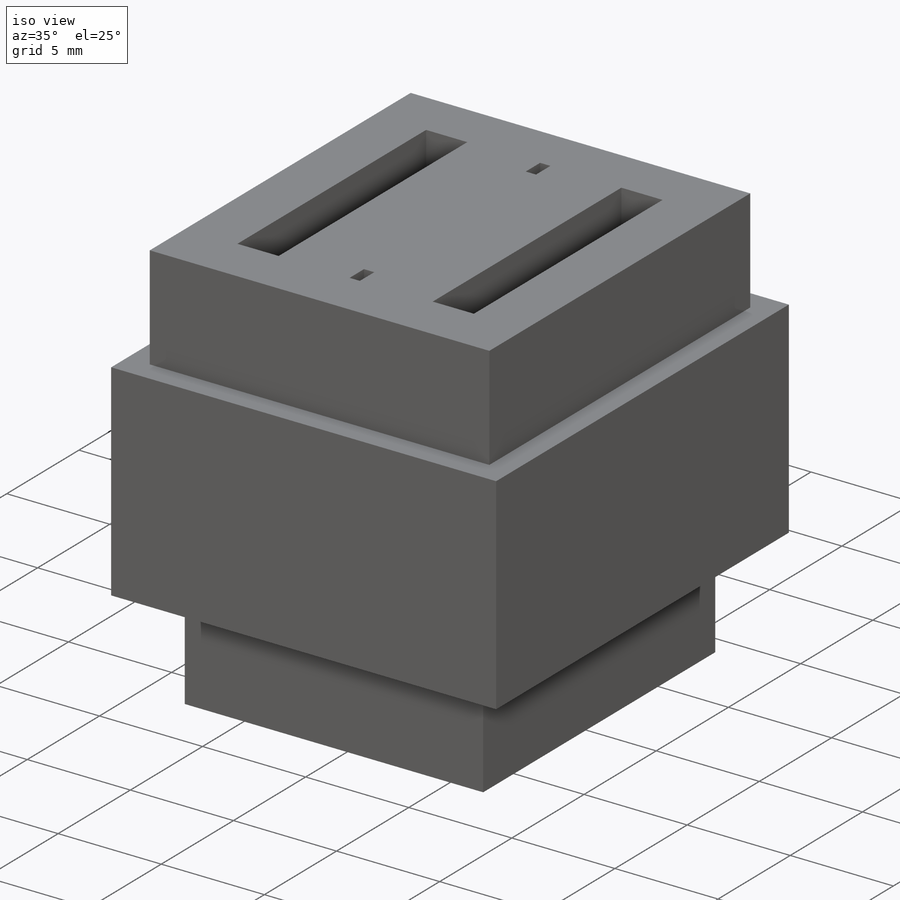
[diagram: iso view]
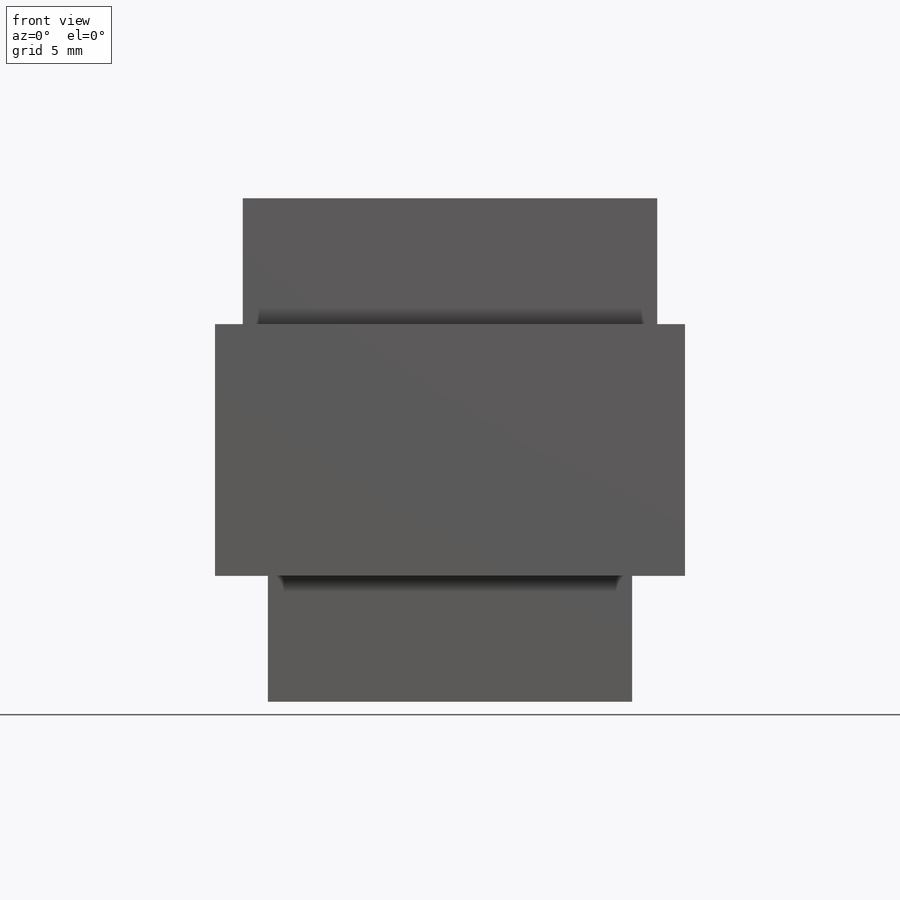
[diagram: front view]
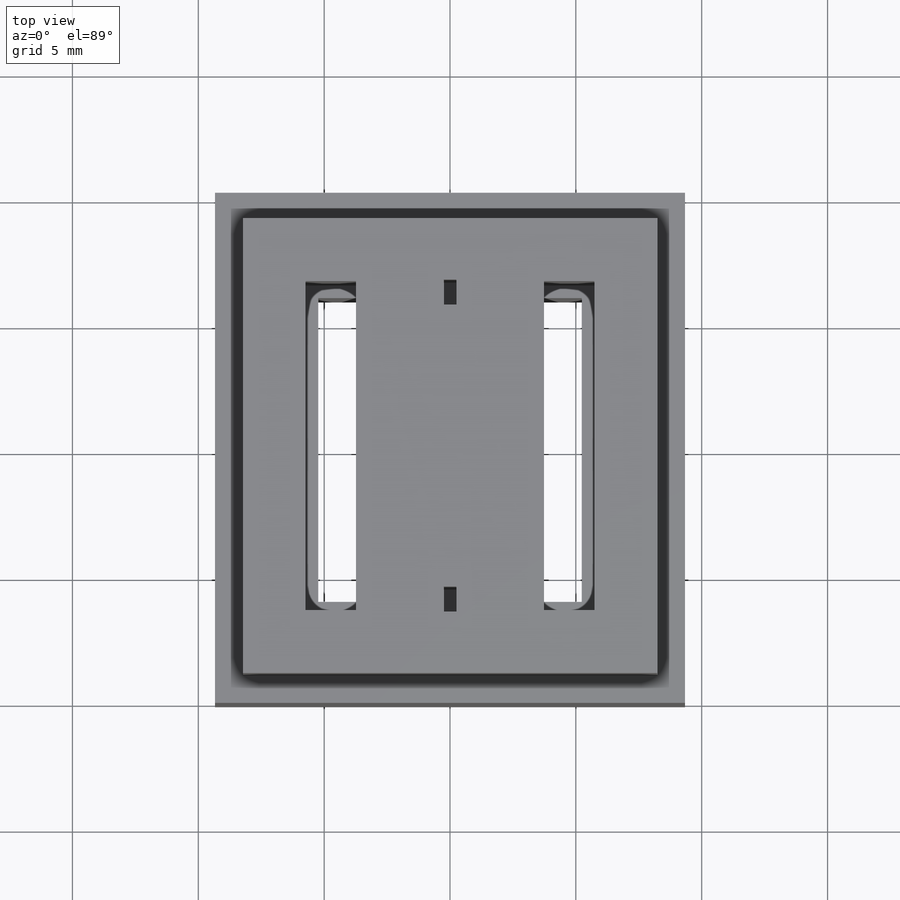
[diagram: top view]
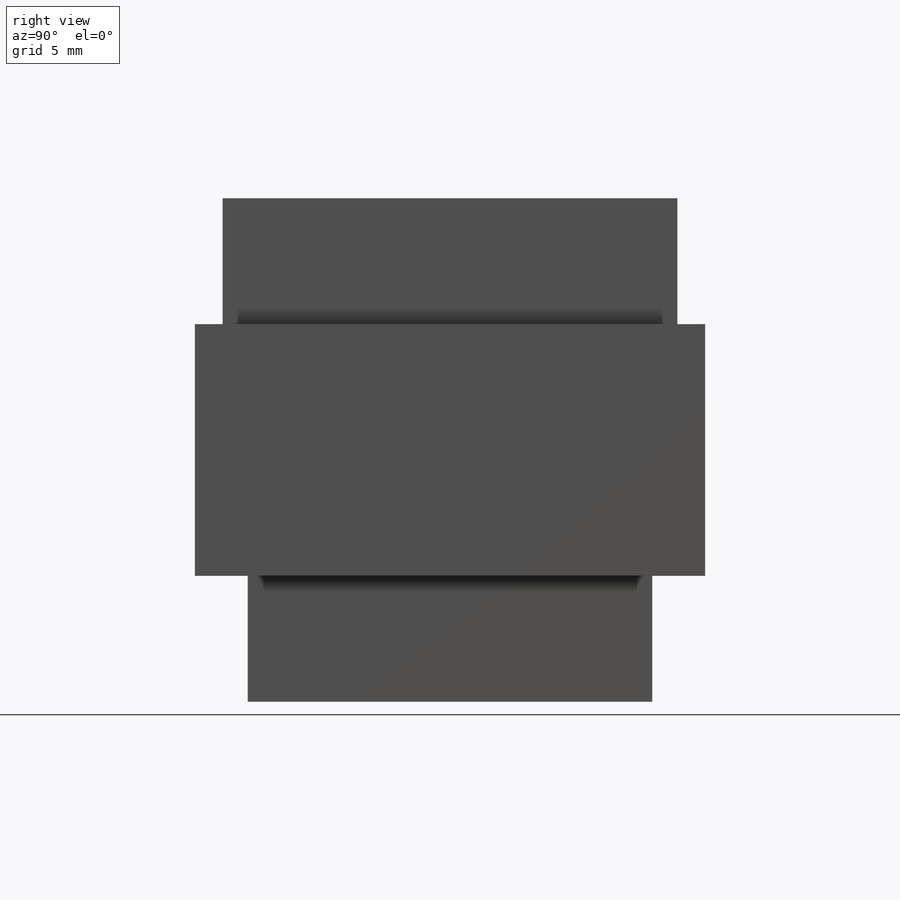
[diagram: right view]
SOLIDWORKS PART (.sldprt)
format: sldprt  version: not decoded by parser v0  size: 272,896 bytes
history: native  units: mm
features: sketch x7, cut_extrude x5, extrude x2, material x1 (+11 scaffold rows collapsed)
feature tree (26):
  scaffold x11  (default folders/planes/origin — collapsed)
  material  "Material <not specified>"
  sketch  "Sketch1"  dims[D1=18.67mm D2=20.27mm]
  extrude  "Boss-Extrude1"  Depth=20mm
  sketch  "Sketch2"  dims[D1=1.1mm]
  cut_extrude  "Cut-Extrude1"  Depth=5mm
  sketch  "Sketch7"  dims[D1=2.1mm]
  cut_extrude  "Cut-Extrude5"  Depth=5mm
  sketch  "Sketch3"  dims[D1=2.0mm]
  cut_extrude  "Cut-Extrude2"  Depth=4mm
  sketch  "Sketch4"  dims[c1.D1=2.0mm c1.D2=2.5mm c1.D3=2.5mm c2.D2=2.5mm c2.D3=2.5mm]
  cut_extrude  "Cut-Extrude3"  [1 undecoded]
  sketch  "Sketch6"  dims[D1=3.5mm]
  extrude  "Boss-Extrude2"  Depth=5mm
  sketch  "Sketch5"  dims[D1=6.1mm D2=0.5mm D3=1.0mm]
  cut_extrude  "Cut-Extrude4"  Depth=7mm
decode coverage: 13 of 14 modeling features carry decoded parameters
note: 1 parameter value undecoded
note: suppression state not decoded; provenance and decode notes live in map.json
